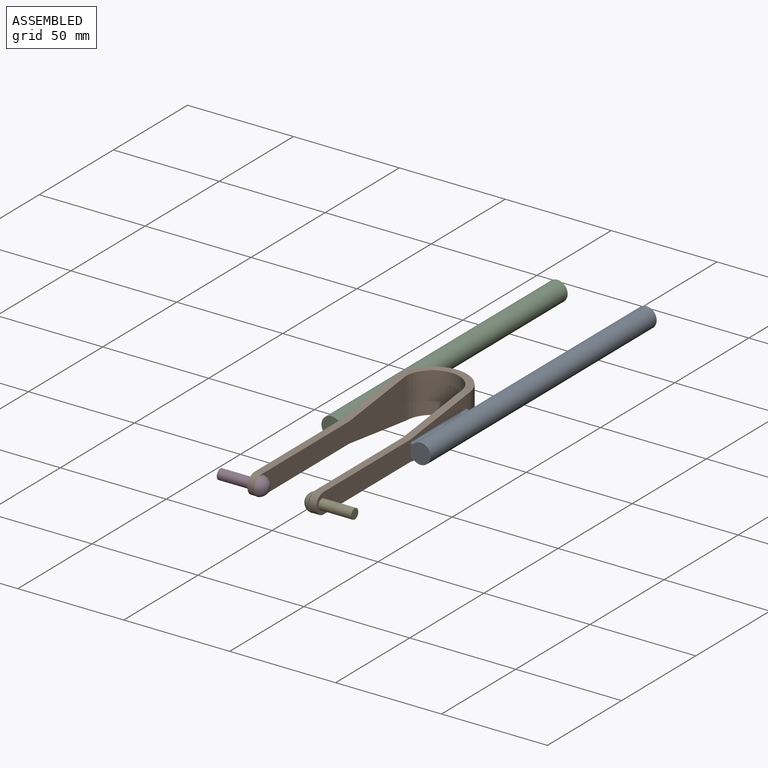
[diagram: assembled view]
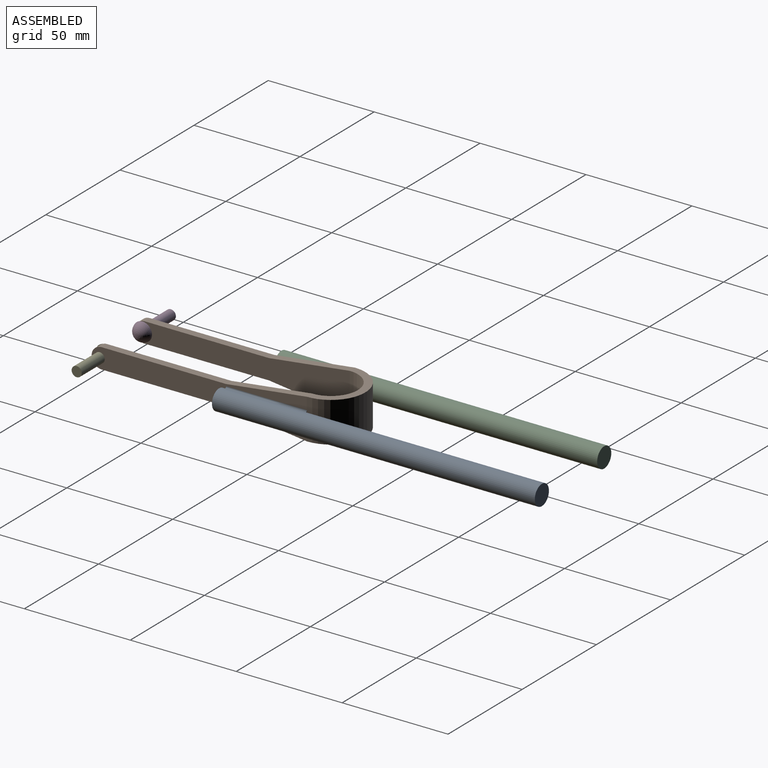
[diagram: assembled view, second angle]
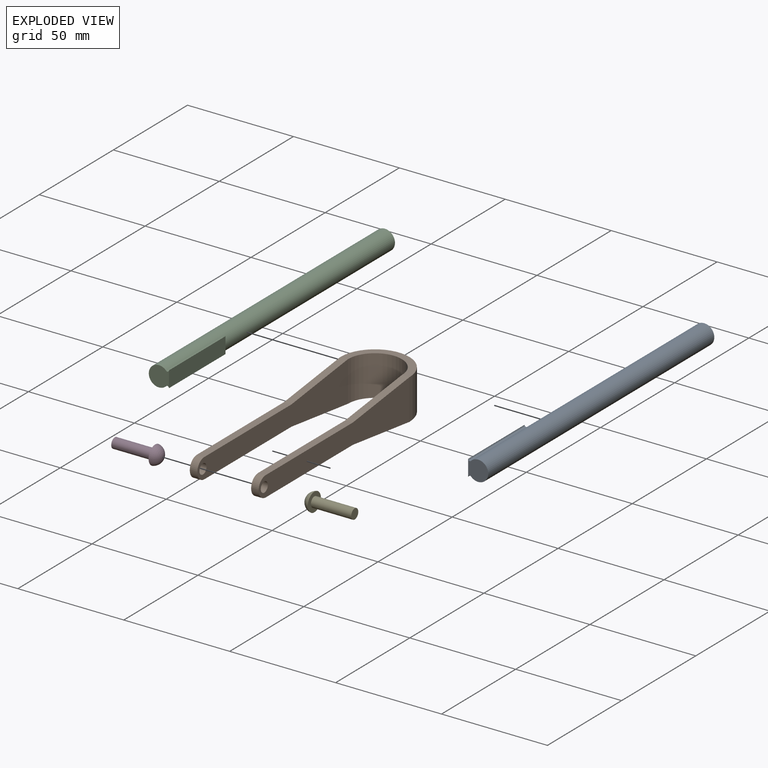
[diagram: exploded view]
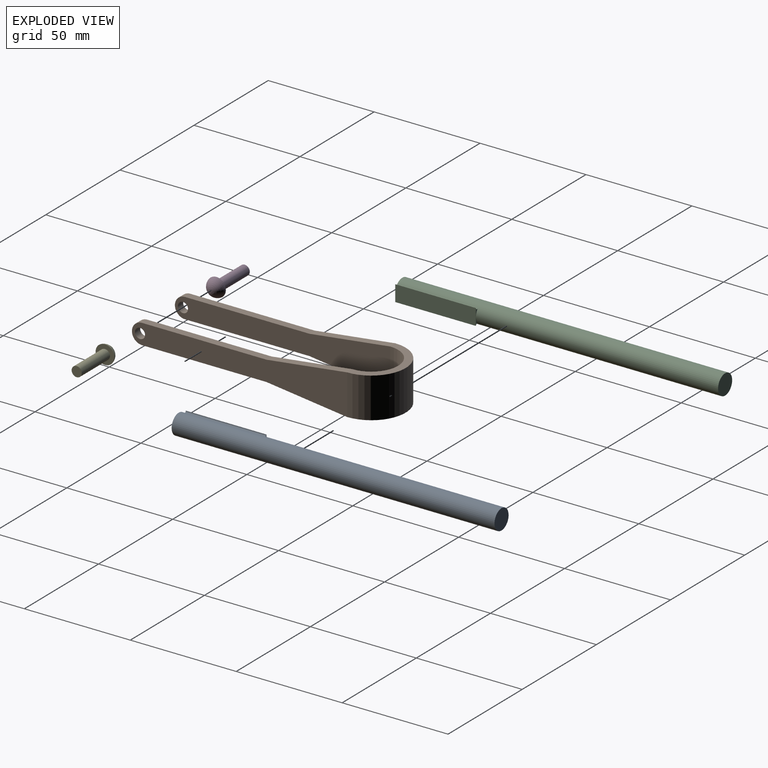
[diagram: exploded view, second angle]
ASSEMBLY  parts=5 mates=4
PART A: 8 faces, bbox 9.5x9.5x152.4 mm
  f0: cylinder r=4.76mm len=152.4mm, axis (0,0,1), area 4284.2mm2, adj f1,f2,f4,f5,f6,f7
  f1: plane 9.53x9.53mm, normal (0,0,-1), area 71.3mm2, adj f0
  f2: plane 9.53x9.53mm, normal (0,0,1), area 73.7mm2, adj f0,f3,f4,f6
  f3: plane 38.1x7.62mm, normal (-1,0,0), area 290.3mm2, adj f2,f4,f5,f6,f7
  f4: cylinder r=0.76mm len=38.1mm, axis (0,0,1), area 69.1mm2, adj f0,f2,f3,f5
  f5: plane 3.81x1.31mm, normal (0,0,-1), area 1.2mm2, adj f0,f3,f4
  f6: cylinder r=0.76mm len=38.1mm, axis (0,0,1), area 69.1mm2, adj f0,f2,f3,f7
  f7: plane 3.81x1.31mm, normal (0,0,-1), area 1.2mm2, adj f0,f3,f6
PART B: 20 faces, bbox 32.5x117.9x19.1 mm
  f0: plane 32.51x16.26mm, normal (0,0,1), area 161.7mm2, adj f1,f3,f7,f8
  f1: cylinder r=16.26mm len=32.51mm, axis (0,0,1), area 972.9mm2, adj f0,f2,f4,f11
  f2: plane 32.51x16.26mm, normal (0,0,-1), area 161.7mm2, adj f1,f3,f5,f10
  f3: cylinder r=12.7mm len=25.4mm, axis (0,0,1), area 760.1mm2, adj f0,f2,f6,f9
  f4: plane 101.6x19.05mm, normal (1,0,0), area 1121.6mm2, adj f1,f5,f7,f14,f15,f16,f19
  f5: plane 38.1x4.76mm, normal (0,-0.12,-0.99), area 136.5mm2, adj f2,f4,f6,f15
  f6: plane 101.6x19.05mm, normal (-1,0,0), area 1121.6mm2, adj f3,f5,f7,f14,f15,f16,f19
  f7: plane 38.1x4.76mm, normal (0,-0.12,0.99), area 136.5mm2, adj f0,f4,f6,f14
  f8: plane 38.1x4.76mm, normal (0,-0.12,0.99), area 136.5mm2, adj f0,f9,f11,f12
  f9: plane 101.6x19.05mm, normal (1,0,0), area 1121.6mm2, adj f3,f8,f10,f12,f13,f17,f18
  f10: plane 38.1x4.76mm, normal (0,-0.12,-0.99), area 136.5mm2, adj f2,f9,f11,f13
  f11: plane 101.6x19.05mm, normal (-1,0,0), area 1121.6mm2, adj f1,f8,f10,f12,f13,f17,f18
  f12: plane 58.74x3.56mm, normal (0,0,1), area 208.9mm2, adj f8,f9,f11,f17
  f13: plane 58.74x3.56mm, normal (0,0,-1), area 208.9mm2, adj f9,f10,f11,f17
  f14: plane 58.74x3.56mm, normal (0,0,1), area 208.9mm2, adj f4,f6,f7,f16
  f15: plane 58.74x3.56mm, normal (0,0,-1), area 208.9mm2, adj f4,f5,f6,f16
  f16: cylinder r=4.76mm len=9.53mm, axis (-1,0,0), area 53.2mm2, adj f4,f6,f14,f15
  f17: cylinder r=4.76mm len=9.53mm, axis (1,0,0), area 53.2mm2, adj f9,f11,f12,f13
  f18: cylinder r=2.38mm len=4.76mm, axis (1,0,0), area 53.2mm2, adj f9,f11
  f19: cylinder r=2.38mm len=4.76mm, axis (1,0,0), area 53.2mm2, adj f4,f6
PART C: same geometry as A
PART D: 4 faces, bbox 22.8x8.8x8.8 mm
  f0: plane 8.84x8.84mm, normal (1,0,0), area 43.6mm2, adj f1,f3
  f1: sphere r=4.48mm, area 105.2mm2, adj f0
  f2: plane 4.76x4.76mm, normal (1,0,0), area 17.8mm2, adj f3
  f3: cylinder r=2.38mm len=19.05mm, axis (-1,0,0), area 285mm2, adj f0,f2
PART E: same geometry as D
PLACE A rot(axis=(1,0,0),90deg) t=(-27.34,-32.26,-3.85)mm
PLACE B t=(-48.35,5.84,-3.85)mm fixed
PLACE C rot(axis=(0,-0.71,0.71),180deg) t=(-69.37,-32.26,-3.85)mm
PLACE D rot(axis=(0,1,0),180deg) t=(-61.05,-91.95,-3.85)mm
PLACE E t=(-35.65,-91.95,-3.85)mm
MATE fastened B.f18 <-> D.f3  axis (1,0,0) through (-61.05,-91.95,-3.85)mm
MATE fastened B.f18 <-> E.f3  axis (1,0,0) through (-35.65,-91.95,-3.85)mm
MATE fastened C.f3 <-> B.f11  axis (1,0,0) through (-64.61,-32.26,-3.85)mm
MATE fastened A.f3 <-> B.f4  axis (-1,0,0) through (-32.1,-32.26,-3.85)mm
